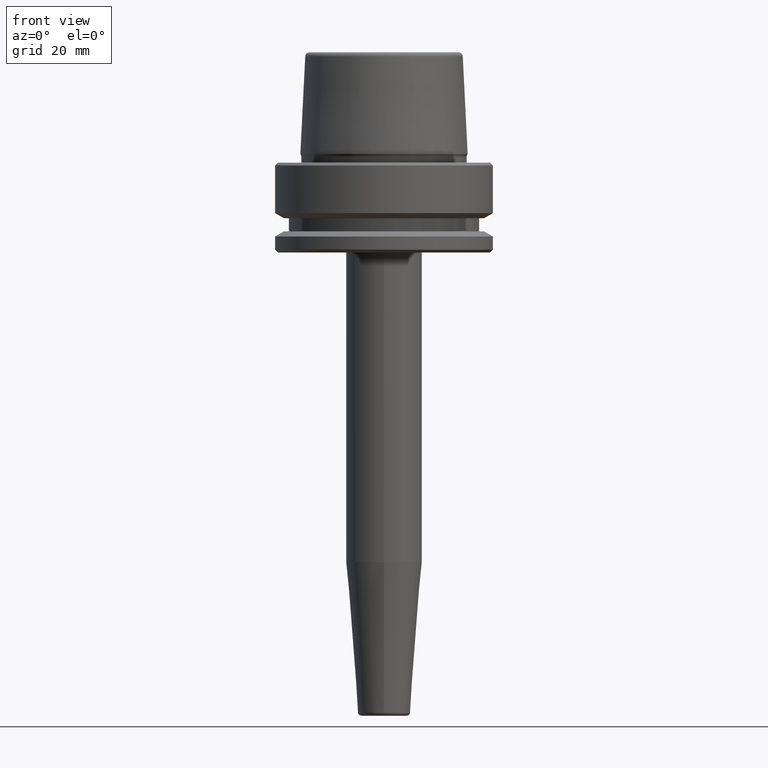
[diagram: clean part render]
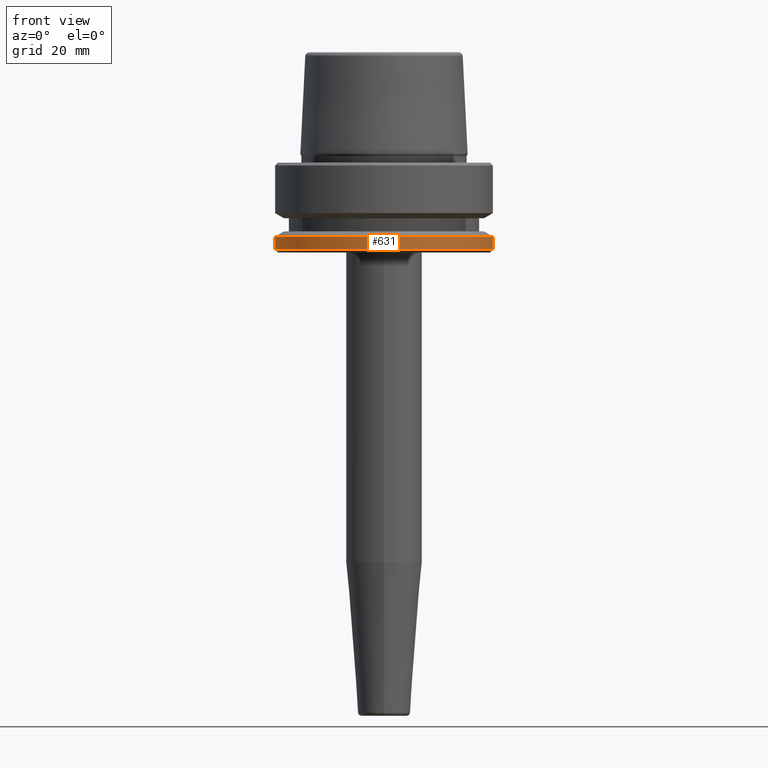
[diagram: same view with one face highlighted and labeled with its STEP entity id]
A machine part, front view. The second image highlights one B-rep face of the part: STEP entity #631.
In plain terms, the highlighted cylindrical surface (partial cylindrical patch) has radius 31.5 mm, axis along (-0, -0, 1).
Its self-contained STEP definition (entity closure, byte-faithful):
#21 = CARTESIAN_POINT ( 'NONE',  ( -31.50000000000000000, 3.857637417314161900E-015, -25.03431457505077200 ) ) ;
#42 = VERTEX_POINT ( 'NONE', #735 ) ;
#45 = LINE ( 'NONE', #622, #230 ) ;
#55 = DIRECTION ( 'NONE',  ( -0.0000000000000000000, -0.0000000000000000000, 1.000000000000000000 ) ) ;
#67 = ORIENTED_EDGE ( 'NONE', *, *, #360, .T. ) ;
#91 = CARTESIAN_POINT ( 'NONE',  ( -31.50000000000000000, 3.857637417314162700E-015, -21.37749907475931700 ) ) ;
#94 = ORIENTED_EDGE ( 'NONE', *, *, #893, .T. ) ;
#111 = FACE_OUTER_BOUND ( 'NONE', #1180, .T. ) ;
#140 = DIRECTION ( 'NONE',  ( -0.0000000000000000000, -0.0000000000000000000, 1.000000000000000000 ) ) ;
#152 = VERTEX_POINT ( 'NONE', #91 ) ;
#200 = DIRECTION ( 'NONE',  ( -0.0000000000000000000, -0.0000000000000000000, 1.000000000000000000 ) ) ;
#230 = VECTOR ( 'NONE', #55, 1000.000000000000000 ) ;
#298 = DIRECTION ( 'NONE',  ( 1.000000000000000000, 0.0000000000000000000, 0.0000000000000000000 ) ) ;
#360 = EDGE_CURVE ( 'NONE', #729, #959, #602, .T. ) ;
#363 = CIRCLE ( 'NONE', #592, 31.50000000000000000 ) ;
#408 = ORIENTED_EDGE ( 'NONE', *, *, #597, .F. ) ;
#421 = AXIS2_PLACEMENT_3D ( 'NONE', #951, #140, #617 ) ;
#447 = LINE ( 'NONE', #692, #1166 ) ;
#537 = DIRECTION ( 'NONE',  ( -0.0000000000000000000, -0.0000000000000000000, 1.000000000000000000 ) ) ;
#592 = AXIS2_PLACEMENT_3D ( 'NONE', #1259, #537, #1015 ) ;
#597 = EDGE_CURVE ( 'NONE', #152, #42, #363, .T. ) ;
#602 = CIRCLE ( 'NONE', #421, 31.50000000000000000 ) ;
#617 = DIRECTION ( 'NONE',  ( 1.000000000000000000, 0.0000000000000000000, 0.0000000000000000000 ) ) ;
#622 = CARTESIAN_POINT ( 'NONE',  ( 31.50000000000000000, 0.0000000000000000000, 78.96908074195309300 ) ) ;
#631 = ADVANCED_FACE ( 'NONE', ( #111 ), #1082, .T. ) ;
#692 = CARTESIAN_POINT ( 'NONE',  ( -31.50000000000000000, 3.857637417314162700E-015, 78.96908074195309300 ) ) ;
#712 = DIRECTION ( 'NONE',  ( -0.0000000000000000000, -0.0000000000000000000, 1.000000000000000000 ) ) ;
#727 = CARTESIAN_POINT ( 'NONE',  ( 31.50000000000000000, 0.0000000000000000000, -25.03431457505077200 ) ) ;
#729 = VERTEX_POINT ( 'NONE', #21 ) ;
#731 = EDGE_CURVE ( 'NONE', #729, #152, #447, .T. ) ;
#735 = CARTESIAN_POINT ( 'NONE',  ( 31.50000000000000000, 0.0000000000000000000, -21.37749907475931700 ) ) ;
#893 = EDGE_CURVE ( 'NONE', #959, #42, #45, .T. ) ;
#920 = AXIS2_PLACEMENT_3D ( 'NONE', #1007, #712, #298 ) ;
#951 = CARTESIAN_POINT ( 'NONE',  ( 0.0000000000000000000, 0.0000000000000000000, -25.03431457505077200 ) ) ;
#959 = VERTEX_POINT ( 'NONE', #727 ) ;
#1007 = CARTESIAN_POINT ( 'NONE',  ( 0.0000000000000000000, 0.0000000000000000000, 78.96908074195309300 ) ) ;
#1015 = DIRECTION ( 'NONE',  ( 1.000000000000000000, 0.0000000000000000000, 0.0000000000000000000 ) ) ;
#1066 = ORIENTED_EDGE ( 'NONE', *, *, #731, .F. ) ;
#1082 = CYLINDRICAL_SURFACE ( 'NONE', #920, 31.50000000000000000 ) ;
#1166 = VECTOR ( 'NONE', #200, 1000.000000000000000 ) ;
#1180 = EDGE_LOOP ( 'NONE', ( #1066, #67, #94, #408 ) ) ;
#1259 = CARTESIAN_POINT ( 'NONE',  ( 0.0000000000000000000, 0.0000000000000000000, -21.37749907475931700 ) ) ;